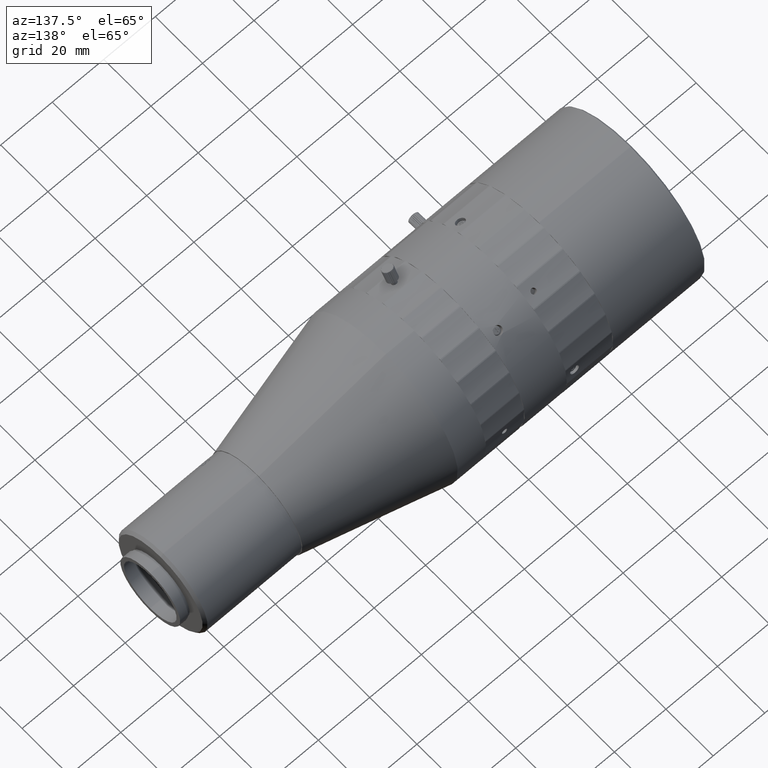
[diagram: clean part render]
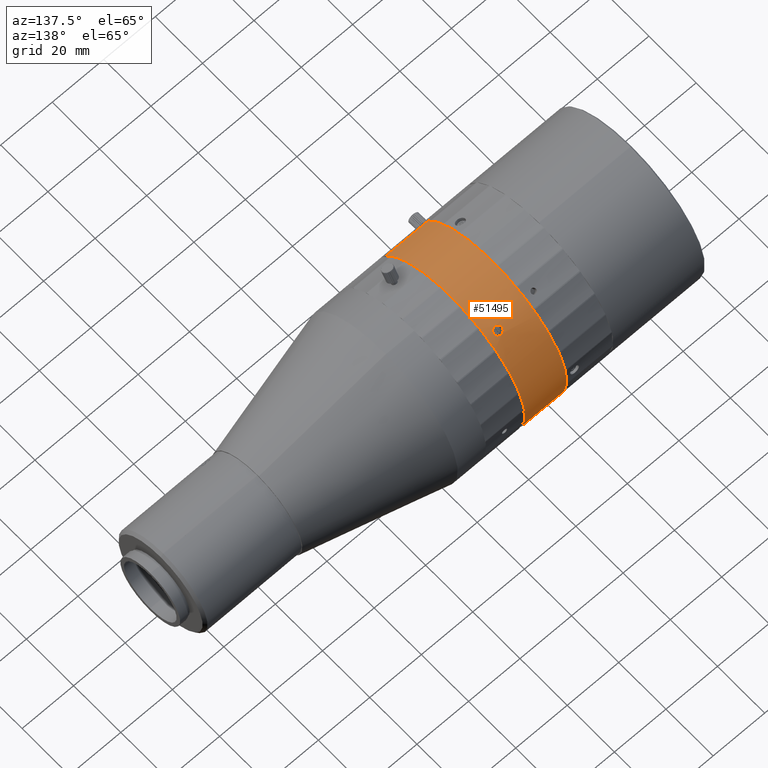
[diagram: same view with one face highlighted and labeled with its STEP entity id]
A machine part, auxiliary view. The second image highlights one B-rep face of the part: STEP entity #51495.
In plain terms, the highlighted cylindrical surface (partial cylindrical patch) has radius 31.5 mm, axis along (-1, 0, 0).
Its self-contained STEP definition (entity closure, byte-faithful):
#167 = B_SPLINE_CURVE_WITH_KNOTS ( 'NONE', 3,
 ( #50479, #8988, #34144, #9513, #13835, #4995, #42449, #1018, #25904, #5781, #22172, #38451, #45916, #5249, #1812, #18137, #37910, #42175, #1295, #33890, #5511, #45311 ),
 .UNSPECIFIED., .F., .F.,
 ( 4, 2, 2, 2, 2, 2, 2, 2, 2, 2, 4 ),
 ( 0.000000000000000000, 0.1249999999999974742, 0.1874999999999980849, 0.2499999999999987232, 0.3749999999999999445, 0.4374999999999974465, 0.4999999999999948930, 0.6249999999999961142, 0.7499999999999973355, 0.8749999999999986677, 1.000000000000000000 ),
 .UNSPECIFIED. ) ;
#965 = CARTESIAN_POINT ( 'NONE',  ( -41.80637415755169428, 32.19349121976943451, 164.0927435715999820 ) ) ;
#1018 = CARTESIAN_POINT ( 'NONE',  ( -44.52751311509535981, 21.50824821021289068, 206.6175908222851945 ) ) ;
#1228 = CARTESIAN_POINT ( 'NONE',  ( -47.20405040450059886, 21.35787051164280825, 206.7105205415904834 ) ) ;
#1295 = CARTESIAN_POINT ( 'NONE',  ( -44.99718571592818961, 19.43883806901318678, 207.7940715507518235 ) ) ;
#1498 = CARTESIAN_POINT ( 'NONE',  ( -47.20452806017146941, 19.96139061262196890, 207.5168073926530781 ) ) ;
#1812 = CARTESIAN_POINT ( 'NONE',  ( -44.24661914943281005, 20.30328067060986186, 207.3281762385483091 ) ) ;
#3038 = EDGE_LOOP ( 'NONE', ( #13803, #18522 ) ) ;
#3659 = DIRECTION ( 'NONE',  ( -1.000000000000000000, 0.000000000000000000, 0.000000000000000000 ) ) ;
#3788 = VECTOR ( 'NONE', #3659, 1000.000000000000000 ) ;
#4358 = EDGE_CURVE ( 'NONE', #39485, #5940, #167, .T. ) ;
#4928 = CARTESIAN_POINT ( 'NONE',  ( -46.22314914839546418, 19.29409674667149233, 207.8688123865668445 ) ) ;
#4995 = CARTESIAN_POINT ( 'NONE',  ( -44.83071117424289298, 21.75307727010623182, 206.4639459324963298 ) ) ;
#5249 = CARTESIAN_POINT ( 'NONE',  ( -44.20622280821524441, 20.48100421338384436, 207.2280265456606969 ) ) ;
#5511 = CARTESIAN_POINT ( 'NONE',  ( -45.59372615315412247, 19.25778365437825101, 207.8872975160618353 ) ) ;
#5717 = CARTESIAN_POINT ( 'NONE',  ( -46.51692174124576695, 19.40239556751399519, 207.8128899893887933 ) ) ;
#5781 = CARTESIAN_POINT ( 'NONE',  ( -44.28847831697147086, 21.10902233651967208, 206.8607100183024272 ) ) ;
#5940 = VERTEX_POINT ( 'NONE', #12801 ) ;
#6837 = ORIENTED_EDGE ( 'NONE', *, *, #52171, .T. ) ;
#8193 = VERTEX_POINT ( 'NONE', #965 ) ;
#8314 = ORIENTED_EDGE ( 'NONE', *, *, #10323, .F. ) ;
#8927 = CARTESIAN_POINT ( 'NONE',  ( -45.80637415755169428, 19.25771977251774203, 207.8873301898629222 ) ) ;
#8988 = CARTESIAN_POINT ( 'NONE',  ( -45.59394095006022241, 22.02894121486632528, 206.2873689254741976 ) ) ;
#9450 = CARTESIAN_POINT ( 'NONE',  ( -46.61556259891736431, 21.85767756587011945, 206.3975539161096719 ) ) ;
#9513 = CARTESIAN_POINT ( 'NONE',  ( -45.09582657385767135, 21.89219606245647753, 206.3754030034053528 ) ) ;
#9737 = FACE_BOUND ( 'NONE', #3038, .T. ) ;
#10177 = CARTESIAN_POINT ( 'NONE',  ( -58.14911772915497323, 32.19349121976943451, 164.0927435715999820 ) ) ;
#10323 = EDGE_CURVE ( 'NONE', #30732, #34640, #11305, .T. ) ;
#11258 = ORIENTED_EDGE ( 'NONE', *, *, #14316, .T. ) ;
#11305 = LINE ( 'NONE', #18832, #20972 ) ;
#11757 = CARTESIAN_POINT ( 'NONE',  ( -41.80637415755169428, 4.913691000558999988, 179.8427435715999820 ) ) ;
#12217 = CARTESIAN_POINT ( 'NONE',  ( -58.14911772915497323, 4.913691000558999988, 179.8427435715999820 ) ) ;
#12801 = CARTESIAN_POINT ( 'NONE',  ( -45.80637415755169428, 19.25771977251774203, 207.8873301898629222 ) ) ;
#12994 = CARTESIAN_POINT ( 'NONE',  ( -46.78203714086052400, 19.54863538960742275, 207.7366810456151711 ) ) ;
#13265 = CARTESIAN_POINT ( 'NONE',  ( -46.22338945141144251, 21.99476664142558491, 206.3095810878073451 ) ) ;
#13523 = CARTESIAN_POINT ( 'NONE',  ( -45.80637415755169428, 22.02900106462796259, 206.2873301898629563 ) ) ;
#13803 = ORIENTED_EDGE ( 'NONE', *, *, #49078, .T. ) ;
#13835 = CARTESIAN_POINT ( 'NONE',  ( -45.00363381488801906, 21.85072088883855912, 206.4019296215966506 ) ) ;
#14033 = CARTESIAN_POINT ( 'NONE',  ( -47.36612916569411169, 21.02197908908410540, 206.9132355131768293 ) ) ;
#14039 = AXIS2_PLACEMENT_3D ( 'NONE', #12217, #40841, #40579 ) ;
#14316 = EDGE_CURVE ( 'NONE', #8193, #15091, #44602, .T. ) ;
#15091 = VERTEX_POINT ( 'NONE', #10177 ) ;
#16705 = AXIS2_PLACEMENT_3D ( 'NONE', #41867, #37865, #18086 ) ;
#18086 = DIRECTION ( 'NONE',  ( 0.000000000000000000, -0.8660254037844433705, 0.4999999999999918954 ) ) ;
#18137 = CARTESIAN_POINT ( 'NONE',  ( -44.40869791057939864, 19.95977864427651483, 207.5177092575670770 ) ) ;
#18522 = ORIENTED_EDGE ( 'NONE', *, *, #4358, .T. ) ;
#18832 = CARTESIAN_POINT ( 'NONE',  ( -62.52929873445399522, -22.36610921865143098, 195.5927435716000105 ) ) ;
#19189 = CIRCLE ( 'NONE', #50772, 31.50000000000054001 ) ;
#20972 = VECTOR ( 'NONE', #23915, 1000.000000000000000 ) ;
#21288 = CARTESIAN_POINT ( 'NONE',  ( -46.78857506312871095, 21.76002168617686294, 206.4599134866046484 ) ) ;
#22102 = CARTESIAN_POINT ( 'NONE',  ( -46.60911450021543345, 19.44610587955308745, 207.7902347445049145 ) ) ;
#22172 = CARTESIAN_POINT ( 'NONE',  ( -44.25818603079625291, 21.02324454214539173, 206.9119700728289502 ) ) ;
#23915 = DIRECTION ( 'NONE',  ( -1.000000000000000000, 0.000000000000000000, 0.000000000000000000 ) ) ;
#25572 = CARTESIAN_POINT ( 'NONE',  ( -47.40652550688442801, 20.84638513953170502, 207.0170737695924004 ) ) ;
#25835 = CARTESIAN_POINT ( 'NONE',  ( -46.01902216220717889, 22.02894082727356917, 206.2873691763297188 ) ) ;
#25904 = CARTESIAN_POINT ( 'NONE',  ( -44.40822025495706526, 21.35628348957057909, 206.7114656146545713 ) ) ;
#28124 = DIRECTION ( 'NONE',  ( -1.000000000000000000, 0.000000000000000000, 0.000000000000000000 ) ) ;
#29608 = FACE_OUTER_BOUND ( 'NONE', #40380, .T. ) ;
#30354 = CARTESIAN_POINT ( 'NONE',  ( -47.40629792090007300, 20.57092154313470189, 207.1760999845170943 ) ) ;
#30732 = VERTEX_POINT ( 'NONE', #36875 ) ;
#31524 = CARTESIAN_POINT ( 'NONE',  ( -62.52929873445399522, 32.19349121976943451, 164.0927435715999820 ) ) ;
#33890 = CARTESIAN_POINT ( 'NONE',  ( -45.38935886394990860, 19.29410682690851075, 207.8688077587029852 ) ) ;
#34144 = CARTESIAN_POINT ( 'NONE',  ( -45.38959916670796702, 21.99477568947439821, 206.3095746719447732 ) ) ;
#34349 = CARTESIAN_POINT ( 'NONE',  ( -46.01880736504318747, 19.25778324342203973, 207.8872977262545305 ) ) ;
#34640 = VERTEX_POINT ( 'NONE', #39341 ) ;
#36875 = CARTESIAN_POINT ( 'NONE',  ( -41.80637415755169428, -22.36610921865143098, 195.5927435716000105 ) ) ;
#37667 = CARTESIAN_POINT ( 'NONE',  ( -45.80637415755169428, 22.02900106462796259, 206.2873301898629563 ) ) ;
#37865 = DIRECTION ( 'NONE',  ( -1.000000000000000000, 0.000000000000000000, 0.000000000000000000 ) ) ;
#37910 = CARTESIAN_POINT ( 'NONE',  ( -44.52420553435263173, 19.80723522752398580, 207.5998135216660501 ) ) ;
#38383 = CARTESIAN_POINT ( 'NONE',  ( -46.86403059835939189, 19.60857162166039203, 207.7051901099443967 ) ) ;
#38451 = CARTESIAN_POINT ( 'NONE',  ( -44.21682642374703676, 20.84479495030806717, 207.0173763313333097 ) ) ;
#38832 = CIRCLE ( 'NONE', #14039, 31.50000000000054001 ) ;
#39341 = CARTESIAN_POINT ( 'NONE',  ( -58.14911772915497323, -22.36610921865143098, 195.5927435716000105 ) ) ;
#39485 = VERTEX_POINT ( 'NONE', #37667 ) ;
#40380 = EDGE_LOOP ( 'NONE', ( #47484, #11258, #6837, #8314 ) ) ;
#40579 = DIRECTION ( 'NONE',  ( 0.000000000000000000, -0.8660254037844433705, 0.4999999999999918954 ) ) ;
#40841 = DIRECTION ( 'NONE',  ( 1.000000000000000000, 0.000000000000000000, 0.000000000000000000 ) ) ;
#41867 = CARTESIAN_POINT ( 'NONE',  ( -62.52929873445399522, 4.913691000558999988, 179.8427435715999820 ) ) ;
#42106 = CARTESIAN_POINT ( 'NONE',  ( -47.08523519997410034, 19.80411029724283622, 207.6014753050732509 ) ) ;
#42175 = CARTESIAN_POINT ( 'NONE',  ( -44.82417325196435343, 19.54167098098643862, 207.7406788634031329 ) ) ;
#42449 = CARTESIAN_POINT ( 'NONE',  ( -44.74871771676095733, 21.69583720381435299, 206.5001067642168948 ) ) ;
#42566 = B_SPLINE_CURVE_WITH_KNOTS ( 'NONE', 3,
 ( #8927, #34349, #4928, #5717, #22102, #12994, #38383, #42106, #1498, #46098, #45856, #50680, #30354, #25572, #14033, #1228, #49623, #21288, #9450, #13265, #25835, #13523 ),
 .UNSPECIFIED., .F., .F.,
 ( 4, 2, 2, 2, 2, 2, 2, 2, 2, 2, 4 ),
 ( 0.000000000000000000, 0.1250000000000014155, 0.1875000000000043576, 0.2500000000000072720, 0.3750000000000102696, 0.4375000000000124900, 0.5000000000000147660, 0.6250000000000111022, 0.7500000000000073275, 0.8750000000000036637, 1.000000000000000000 ),
 .UNSPECIFIED. ) ;
#44375 = DIRECTION ( 'NONE',  ( 0.000000000000000000, -0.8660254037844433705, 0.4999999999999918954 ) ) ;
#44602 = LINE ( 'NONE', #31524, #3788 ) ;
#45311 = CARTESIAN_POINT ( 'NONE',  ( -45.80637415755169428, 19.25771977251774203, 207.8873301898629222 ) ) ;
#45856 = CARTESIAN_POINT ( 'NONE',  ( -47.35456228430535930, 20.30155204064111629, 207.3286394328447386 ) ) ;
#45916 = CARTESIAN_POINT ( 'NONE',  ( -44.20645039420529798, 20.75645675353918662, 207.0689811808459240 ) ) ;
#46098 = CARTESIAN_POINT ( 'NONE',  ( -47.32426999811936952, 20.21427063398748913, 207.3772951546163767 ) ) ;
#47484 = ORIENTED_EDGE ( 'NONE', *, *, #51994, .T. ) ;
#49078 = EDGE_CURVE ( 'NONE', #5940, #39485, #42566, .T. ) ;
#49623 = CARTESIAN_POINT ( 'NONE',  ( -47.08854278076118050, 21.50524659845882169, 206.6194661995695867 ) ) ;
#50428 = CYLINDRICAL_SURFACE ( 'NONE', #16705, 31.50000000000054001 ) ;
#50479 = CARTESIAN_POINT ( 'NONE',  ( -45.80637415755169428, 22.02900106462796259, 206.2873301898629563 ) ) ;
#50680 = CARTESIAN_POINT ( 'NONE',  ( -47.39592189135822764, 20.48206133410922547, 207.2268006822895074 ) ) ;
#50772 = AXIS2_PLACEMENT_3D ( 'NONE', #11757, #28124, #44375 ) ;
#51495 = ADVANCED_FACE ( 'NONE', ( #29608, #9737 ), #50428, .T. ) ;
#51994 = EDGE_CURVE ( 'NONE', #30732, #8193, #19189, .T. ) ;
#52171 = EDGE_CURVE ( 'NONE', #15091, #34640, #38832, .T. ) ;